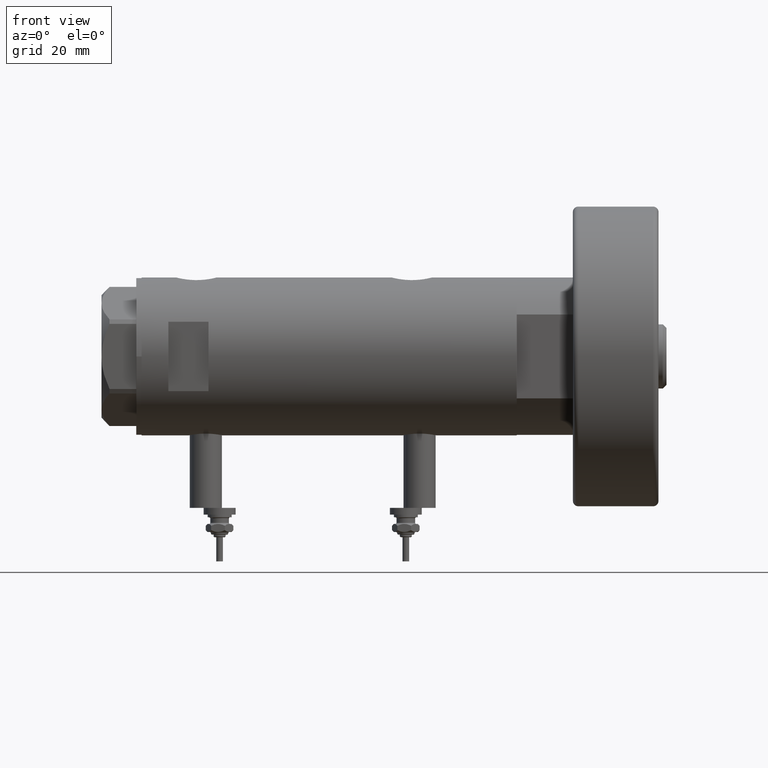
[diagram: clean part render]
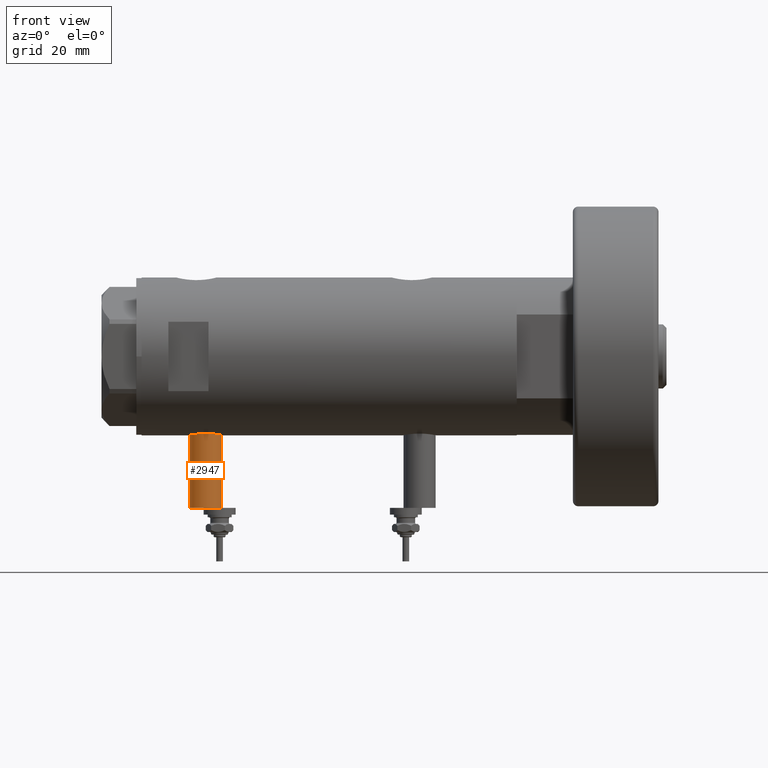
[diagram: same view with one face highlighted and labeled with its STEP entity id]
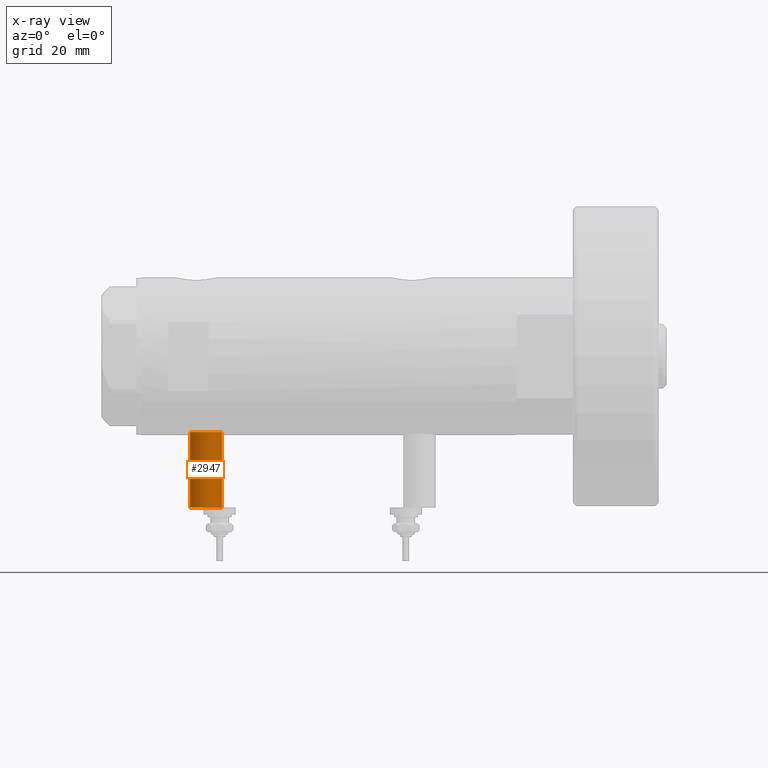
[diagram: x-ray of the same camera — body ghosted, the highlighted face saturated]
A machine part, front view. The second image highlights one B-rep face of the part: STEP entity #2947.
The next image is the same camera in x-ray: the body ghosted, the highlighted face saturated — about 0% of this face is hidden behind the body in this view.
In plain terms, the highlighted cylindrical surface (edge-blend (fillet) strip) has radius 6 mm, axis along (0, 0, 1).
Its self-contained STEP definition (entity closure, byte-faithful):
#154 = CARTESIAN_POINT ( 'NONE',  ( -56.60000000000000142, 0.000000000000000000, 40.09999999999999432 ) ) ;
#158 = AXIS2_PLACEMENT_3D ( 'NONE', #2385, #3868, #468 ) ;
#189 = VERTEX_POINT ( 'NONE', #5487 ) ;
#468 = DIRECTION ( 'NONE',  ( 0.000000000000000000, 0.000000000000000000, 1.000000000000000000 ) ) ;
#837 = ORIENTED_EDGE ( 'NONE', *, *, #3456, .T. ) ;
#1138 = VERTEX_POINT ( 'NONE', #2677 ) ;
#1684 = VECTOR ( 'NONE', #5035, 1000.000000000000000 ) ;
#2060 = DIRECTION ( 'NONE',  ( -1.000000000000000000, 0.000000000000000000, 0.000000000000000000 ) ) ;
#2201 = CIRCLE ( 'NONE', #158, 5.999999999999998224 ) ;
#2276 = DIRECTION ( 'NONE',  ( 0.000000000000000000, 0.000000000000000000, -1.000000000000000000 ) ) ;
#2356 = ORIENTED_EDGE ( 'NONE', *, *, #5780, .F. ) ;
#2385 = CARTESIAN_POINT ( 'NONE',  ( -28.30000000000000071, 0.000000000000000000, 46.09999999999999432 ) ) ;
#2661 = EDGE_CURVE ( 'NONE', #4264, #1138, #2201, .T. ) ;
#2677 = CARTESIAN_POINT ( 'NONE',  ( -28.30000000000000071, 7.347880794884108889E-16, 52.09999999999999432 ) ) ;
#2682 = CARTESIAN_POINT ( 'NONE',  ( -28.30000000000000071, 0.000000000000000000, 40.09999999999999432 ) ) ;
#2837 = EDGE_CURVE ( 'NONE', #5313, #189, #4244, .T. ) ;
#2947 = ADVANCED_FACE ( 'NONE', ( #4142 ), #4173, .T. ) ;
#2956 = ORIENTED_EDGE ( 'NONE', *, *, #2837, .F. ) ;
#3456 = EDGE_CURVE ( 'NONE', #5313, #4264, #5498, .T. ) ;
#3484 = DIRECTION ( 'NONE',  ( 0.000000000000000000, 0.000000000000000000, 1.000000000000000000 ) ) ;
#3569 = EDGE_LOOP ( 'NONE', ( #2356, #2956, #837, #5690 ) ) ;
#3868 = DIRECTION ( 'NONE',  ( -1.000000000000000000, 0.000000000000000000, 0.000000000000000000 ) ) ;
#3936 = AXIS2_PLACEMENT_3D ( 'NONE', #5121, #6124, #2276 ) ;
#3947 = CARTESIAN_POINT ( 'NONE',  ( -56.60000000000000142, 7.347880794884112834E-16, 52.09999999999999432 ) ) ;
#4142 = FACE_OUTER_BOUND ( 'NONE', #3569, .T. ) ;
#4173 = CYLINDRICAL_SURFACE ( 'NONE', #3936, 5.999999999999998224 ) ;
#4244 = CIRCLE ( 'NONE', #5263, 5.999999999999998224 ) ;
#4264 = VERTEX_POINT ( 'NONE', #2682 ) ;
#4834 = LINE ( 'NONE', #3947, #4858 ) ;
#4858 = VECTOR ( 'NONE', #6219, 1000.000000000000000 ) ;
#5022 = CARTESIAN_POINT ( 'NONE',  ( -56.60000000000000142, 0.000000000000000000, 46.09999999999999432 ) ) ;
#5035 = DIRECTION ( 'NONE',  ( 1.000000000000000000, -0.000000000000000000, -0.000000000000000000 ) ) ;
#5121 = CARTESIAN_POINT ( 'NONE',  ( -56.60000000000000142, 0.000000000000000000, 46.09999999999999432 ) ) ;
#5263 = AXIS2_PLACEMENT_3D ( 'NONE', #5022, #2060, #3484 ) ;
#5313 = VERTEX_POINT ( 'NONE', #5717 ) ;
#5487 = CARTESIAN_POINT ( 'NONE',  ( -56.60000000000000142, 7.347880794884108889E-16, 52.09999999999999432 ) ) ;
#5498 = LINE ( 'NONE', #154, #1684 ) ;
#5690 = ORIENTED_EDGE ( 'NONE', *, *, #2661, .T. ) ;
#5717 = CARTESIAN_POINT ( 'NONE',  ( -56.60000000000000142, 0.000000000000000000, 40.09999999999999432 ) ) ;
#5780 = EDGE_CURVE ( 'NONE', #189, #1138, #4834, .T. ) ;
#6124 = DIRECTION ( 'NONE',  ( 1.000000000000000000, -0.000000000000000000, -0.000000000000000000 ) ) ;
#6219 = DIRECTION ( 'NONE',  ( 1.000000000000000000, -0.000000000000000000, -0.000000000000000000 ) ) ;